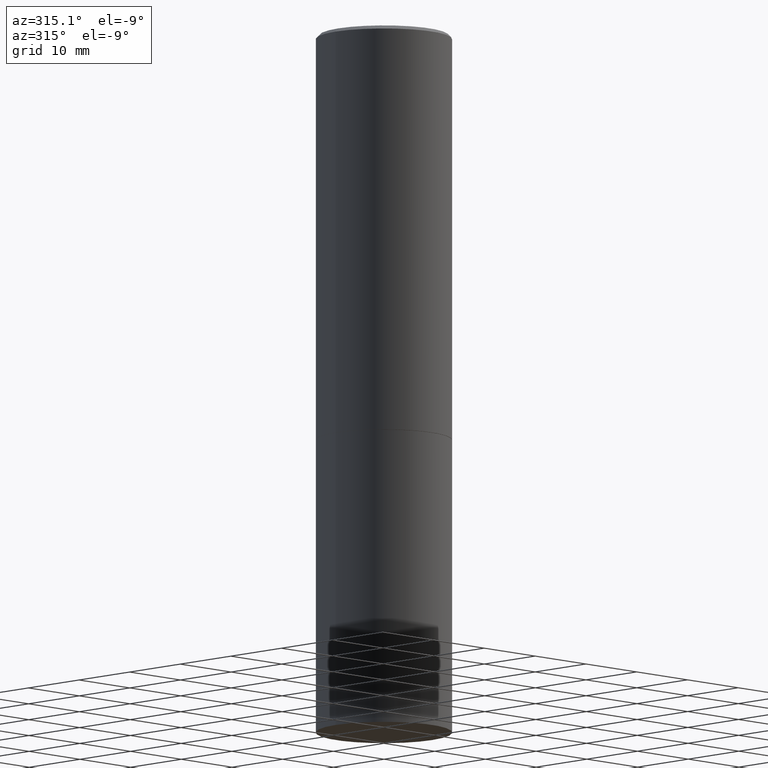
[diagram: clean part render]
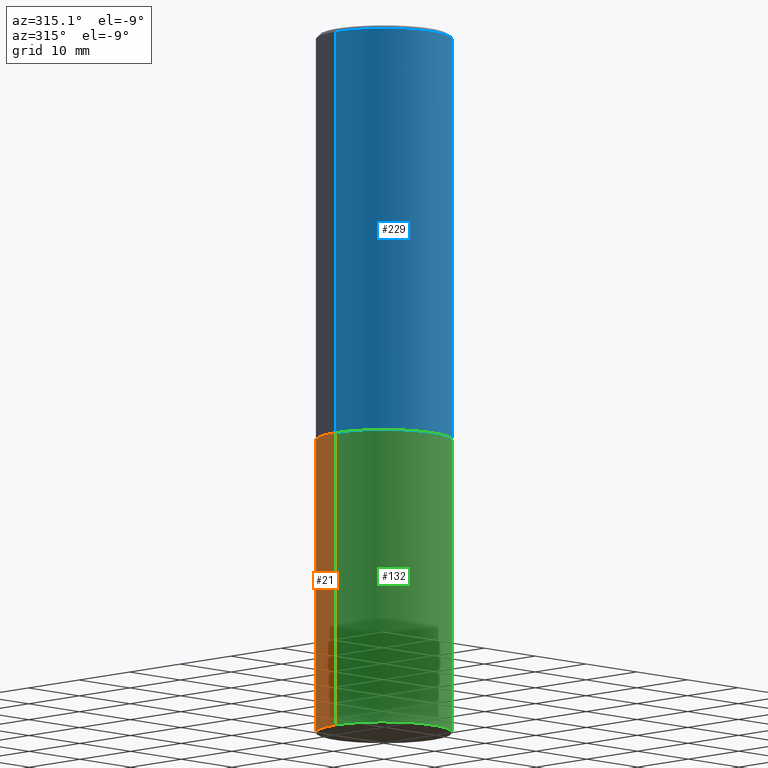
[diagram: same view with three faces highlighted in distinct colors, each labeled with its STEP entity id]
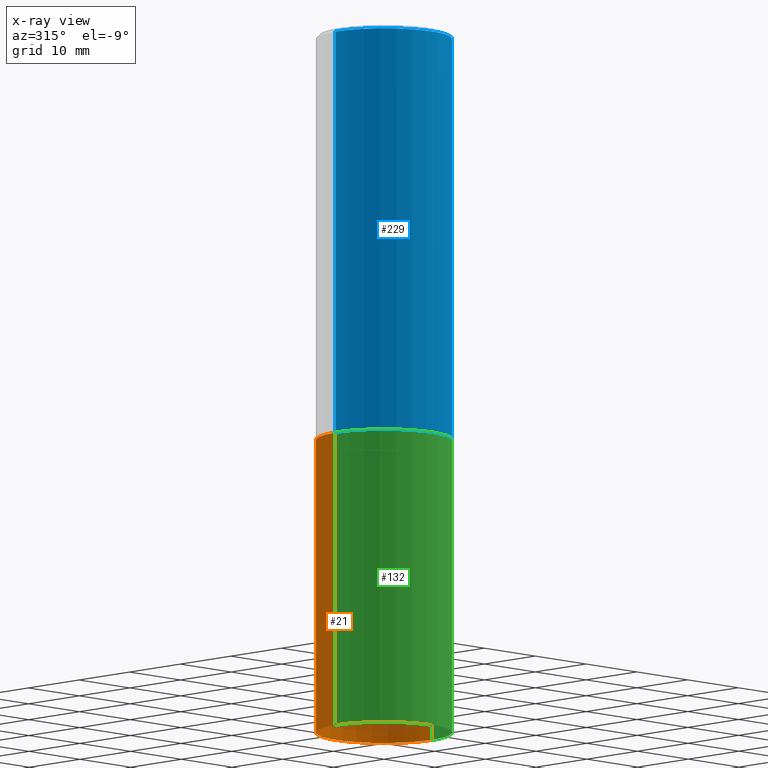
[diagram: x-ray of the same camera — body ghosted, the three highlighted faces saturated]
A machine part, auxiliary view with three faces highlighted in distinct colors.
The next image is the same camera in x-ray (body ghosted, the three faces saturated) — at least one of them is partly hidden behind the body in this view.
Their STEP definitions:

[orange] entity #21 — the highlighted cylindrical surface (partial cylindrical patch) has radius 9.525 mm, axis along (-0, 0, 1).
#8 = VERTEX_POINT ( 'NONE', #70 ) ;
#21 = ADVANCED_FACE ( 'NONE', ( #74 ), #46, .T. ) ;
#25 = AXIS2_PLACEMENT_3D ( 'NONE', #64, #227, #197 ) ;
#29 = CARTESIAN_POINT ( 'NONE',  ( 5.502304813916557343E-29, -7.855833012397078448E-15, -2.250000000000000000 ) ) ;
#38 = DIRECTION ( 'NONE',  ( -2.445468806185136597E-29, 3.491481338843145583E-15, 1.000000000000000000 ) ) ;
#41 = CARTESIAN_POINT ( 'NONE',  ( -0.3750000000000000555, -8.028126341106757280E-15, -2.250000000000000000 ) ) ;
#46 = CYLINDRICAL_SURFACE ( 'NONE', #322, 0.3750000000000000555 ) ;
#50 = EDGE_CURVE ( 'NONE', #242, #8, #96, .T. ) ;
#58 = CARTESIAN_POINT ( 'NONE',  ( 0.3750000000000000555, -1.614810119214954068E-14, -3.875000000000000000 ) ) ;
#62 = AXIS2_PLACEMENT_3D ( 'NONE', #29, #169, #260 ) ;
#64 = CARTESIAN_POINT ( 'NONE',  ( 9.476191623967404313E-29, -1.352949018801718908E-14, -3.875000000000000000 ) ) ;
#70 = CARTESIAN_POINT ( 'NONE',  ( 0.3750000000000000555, -1.047444401652942689E-14, -2.250000000000000000 ) ) ;
#74 = FACE_OUTER_BOUND ( 'NONE', #354, .T. ) ;
#79 = VECTOR ( 'NONE', #193, 39.37007874015748143 ) ;
#84 = EDGE_CURVE ( 'NONE', #209, #315, #168, .T. ) ;
#96 = LINE ( 'NONE', #203, #185 ) ;
#123 = CARTESIAN_POINT ( 'NONE',  ( 0.000000000000000000, 0.000000000000000000, 0.000000000000000000 ) ) ;
#133 = CARTESIAN_POINT ( 'NONE',  ( -0.3750000000000000555, -8.028126341106757280E-15, -3.875000000000000000 ) ) ;
#165 = CIRCLE ( 'NONE', #62, 0.3750000000000000555 ) ;
#168 = LINE ( 'NONE', #303, #79 ) ;
#169 = DIRECTION ( 'NONE',  ( -2.445468806185136597E-29, 3.491481338843145583E-15, 1.000000000000000000 ) ) ;
#180 = DIRECTION ( 'NONE',  ( -2.445468806185136877E-29, 3.491481338843145188E-15, 1.000000000000000000 ) ) ;
#184 = ORIENTED_EDGE ( 'NONE', *, *, #247, .F. ) ;
#185 = VECTOR ( 'NONE', #180, 39.37007874015748143 ) ;
#193 = DIRECTION ( 'NONE',  ( -2.445468806185136877E-29, 3.491481338843145188E-15, 1.000000000000000000 ) ) ;
#197 = DIRECTION ( 'NONE',  ( 1.000000000000000000, -6.982962677686266711E-15, 0.000000000000000000 ) ) ;
#203 = CARTESIAN_POINT ( 'NONE',  ( 0.3750000000000000555, -2.618611004132350016E-15, 1.828566290923476203E-29 ) ) ;
#209 = VERTEX_POINT ( 'NONE', #133 ) ;
#227 = DIRECTION ( 'NONE',  ( -2.445468806185136597E-29, 3.491481338843145583E-15, 1.000000000000000000 ) ) ;
#240 = DIRECTION ( 'NONE',  ( 1.000000000000000000, -6.982962677686265922E-15, 4.876176775795935793E-29 ) ) ;
#242 = VERTEX_POINT ( 'NONE', #58 ) ;
#247 = EDGE_CURVE ( 'NONE', #8, #315, #165, .T. ) ;
#260 = DIRECTION ( 'NONE',  ( 1.000000000000000000, -6.982962677686264344E-15, 0.000000000000000000 ) ) ;
#262 = EDGE_CURVE ( 'NONE', #242, #209, #338, .T. ) ;
#268 = ORIENTED_EDGE ( 'NONE', *, *, #50, .F. ) ;
#301 = ORIENTED_EDGE ( 'NONE', *, *, #262, .T. ) ;
#303 = CARTESIAN_POINT ( 'NONE',  ( -0.3750000000000000555, 2.664535259100376091E-15, -1.844600658845589598E-29 ) ) ;
#315 = VERTEX_POINT ( 'NONE', #41 ) ;
#322 = AXIS2_PLACEMENT_3D ( 'NONE', #123, #38, #240 ) ;
#338 = CIRCLE ( 'NONE', #25, 0.3750000000000000555 ) ;
#354 = EDGE_LOOP ( 'NONE', ( #301, #358, #184, #268 ) ) ;
#358 = ORIENTED_EDGE ( 'NONE', *, *, #84, .T. ) ;

[blue] entity #229 — the highlighted cylindrical surface (partial cylindrical patch) has radius 9.525 mm, axis along (-0, 0, 1).
#6 = VECTOR ( 'NONE', #130, 39.37007874015748143 ) ;
#16 = EDGE_CURVE ( 'NONE', #317, #186, #321, .T. ) ;
#19 = CARTESIAN_POINT ( 'NONE',  ( 0.000000000000000000, 0.000000000000000000, 0.000000000000000000 ) ) ;
#26 = DIRECTION ( 'NONE',  ( -2.445468806185136877E-29, 3.491481338843145188E-15, 1.000000000000000000 ) ) ;
#27 = CARTESIAN_POINT ( 'NONE',  ( -0.3749999999999997780, 2.548781377355484746E-15, -0.02000000000000008715 ) ) ;
#30 = DIRECTION ( 'NONE',  ( -2.445468806185136597E-29, 3.491481338843145583E-15, 1.000000000000000000 ) ) ;
#61 = CARTESIAN_POINT ( 'NONE',  ( 5.499859345110371740E-29, -7.852341531058233864E-15, -2.249000000000000110 ) ) ;
#77 = CARTESIAN_POINT ( 'NONE',  ( 0.3750000000000000555, -1.047095253519058546E-14, -2.249000000000000110 ) ) ;
#90 = AXIS2_PLACEMENT_3D ( 'NONE', #158, #135, #234 ) ;
#92 = CIRCLE ( 'NONE', #230, 0.3750000000000000555 ) ;
#117 = CYLINDRICAL_SURFACE ( 'NONE', #255, 0.3749999999999998890 ) ;
#120 = EDGE_LOOP ( 'NONE', ( #196, #178, #208, #154 ) ) ;
#130 = DIRECTION ( 'NONE',  ( -2.445468806185136877E-29, 3.491481338843145188E-15, 1.000000000000000000 ) ) ;
#135 = DIRECTION ( 'NONE',  ( -2.445468806185136597E-29, 3.491481338843145583E-15, 1.000000000000000000 ) ) ;
#141 = DIRECTION ( 'NONE',  ( -2.445468806185136597E-29, 3.491481338843145583E-15, 1.000000000000000000 ) ) ;
#148 = CARTESIAN_POINT ( 'NONE',  ( -0.3749999999999998890, 2.664535259100374908E-15, -1.844600658845589038E-29 ) ) ;
#151 = EDGE_CURVE ( 'NONE', #156, #233, #275, .T. ) ;
#154 = ORIENTED_EDGE ( 'NONE', *, *, #330, .F. ) ;
#156 = VERTEX_POINT ( 'NONE', #77 ) ;
#158 = CARTESIAN_POINT ( 'NONE',  ( 4.890937612370294178E-31, -6.982962677686321191E-17, -0.02000000000000008715 ) ) ;
#160 = CARTESIAN_POINT ( 'NONE',  ( 0.3749999999999998890, -2.618611004132349228E-15, 1.828566290923475362E-29 ) ) ;
#178 = ORIENTED_EDGE ( 'NONE', *, *, #266, .T. ) ;
#186 = VERTEX_POINT ( 'NONE', #27 ) ;
#196 = ORIENTED_EDGE ( 'NONE', *, *, #16, .F. ) ;
#198 = VECTOR ( 'NONE', #26, 39.37007874015748143 ) ;
#208 = ORIENTED_EDGE ( 'NONE', *, *, #151, .T. ) ;
#221 = DIRECTION ( 'NONE',  ( 1.000000000000000000, -6.982962677686266711E-15, 4.876176775795935793E-29 ) ) ;
#229 = ADVANCED_FACE ( 'NONE', ( #278 ), #117, .T. ) ;
#230 = AXIS2_PLACEMENT_3D ( 'NONE', #61, #30, #261 ) ;
#233 = VERTEX_POINT ( 'NONE', #327 ) ;
#234 = DIRECTION ( 'NONE',  ( 1.000000000000000000, -6.982962677686265922E-15, 0.000000000000000000 ) ) ;
#241 = CIRCLE ( 'NONE', #90, 0.3749999999999997780 ) ;
#244 = CARTESIAN_POINT ( 'NONE',  ( -0.3750000000000000555, -1.296550319817170517E-15, -2.249000000000000110 ) ) ;
#255 = AXIS2_PLACEMENT_3D ( 'NONE', #19, #141, #221 ) ;
#261 = DIRECTION ( 'NONE',  ( 1.000000000000000000, -6.982962677686266711E-15, 0.000000000000000000 ) ) ;
#266 = EDGE_CURVE ( 'NONE', #317, #156, #92, .T. ) ;
#275 = LINE ( 'NONE', #160, #198 ) ;
#278 = FACE_OUTER_BOUND ( 'NONE', #120, .T. ) ;
#317 = VERTEX_POINT ( 'NONE', #244 ) ;
#321 = LINE ( 'NONE', #148, #6 ) ;
#327 = CARTESIAN_POINT ( 'NONE',  ( 0.3749999999999997780, -2.642516375941186056E-15, -0.02000000000000008715 ) ) ;
#330 = EDGE_CURVE ( 'NONE', #186, #233, #241, .T. ) ;

[green] entity #132 — the highlighted cylindrical surface (partial cylindrical patch) has radius 9.525 mm, axis along (-0, 0, 1).
#8 = VERTEX_POINT ( 'NONE', #70 ) ;
#40 = ORIENTED_EDGE ( 'NONE', *, *, #50, .T. ) ;
#41 = CARTESIAN_POINT ( 'NONE',  ( -0.3750000000000000555, -8.028126341106757280E-15, -2.250000000000000000 ) ) ;
#48 = DIRECTION ( 'NONE',  ( -2.445468806185136597E-29, 3.491481338843145583E-15, 1.000000000000000000 ) ) ;
#49 = ORIENTED_EDGE ( 'NONE', *, *, #84, .F. ) ;
#50 = EDGE_CURVE ( 'NONE', #242, #8, #96, .T. ) ;
#58 = CARTESIAN_POINT ( 'NONE',  ( 0.3750000000000000555, -1.614810119214954068E-14, -3.875000000000000000 ) ) ;
#70 = CARTESIAN_POINT ( 'NONE',  ( 0.3750000000000000555, -1.047444401652942689E-14, -2.250000000000000000 ) ) ;
#71 = CARTESIAN_POINT ( 'NONE',  ( 9.476191623967404313E-29, -1.352949018801718908E-14, -3.875000000000000000 ) ) ;
#76 = DIRECTION ( 'NONE',  ( 1.000000000000000000, -6.982962677686265922E-15, 4.876176775795935793E-29 ) ) ;
#79 = VECTOR ( 'NONE', #193, 39.37007874015748143 ) ;
#81 = FACE_OUTER_BOUND ( 'NONE', #145, .T. ) ;
#84 = EDGE_CURVE ( 'NONE', #209, #315, #168, .T. ) ;
#96 = LINE ( 'NONE', #203, #185 ) ;
#119 = ORIENTED_EDGE ( 'NONE', *, *, #314, .T. ) ;
#132 = ADVANCED_FACE ( 'NONE', ( #81 ), #164, .T. ) ;
#133 = CARTESIAN_POINT ( 'NONE',  ( -0.3750000000000000555, -8.028126341106757280E-15, -3.875000000000000000 ) ) ;
#138 = CIRCLE ( 'NONE', #146, 0.3750000000000000555 ) ;
#145 = EDGE_LOOP ( 'NONE', ( #49, #119, #40, #246 ) ) ;
#146 = AXIS2_PLACEMENT_3D ( 'NONE', #71, #48, #181 ) ;
#164 = CYLINDRICAL_SURFACE ( 'NONE', #211, 0.3750000000000000555 ) ;
#168 = LINE ( 'NONE', #303, #79 ) ;
#180 = DIRECTION ( 'NONE',  ( -2.445468806185136877E-29, 3.491481338843145188E-15, 1.000000000000000000 ) ) ;
#181 = DIRECTION ( 'NONE',  ( 1.000000000000000000, -6.982962677686266711E-15, 0.000000000000000000 ) ) ;
#183 = CIRCLE ( 'NONE', #243, 0.3750000000000000555 ) ;
#185 = VECTOR ( 'NONE', #180, 39.37007874015748143 ) ;
#191 = DIRECTION ( 'NONE',  ( 1.000000000000000000, -6.982962677686264344E-15, 0.000000000000000000 ) ) ;
#193 = DIRECTION ( 'NONE',  ( -2.445468806185136877E-29, 3.491481338843145188E-15, 1.000000000000000000 ) ) ;
#203 = CARTESIAN_POINT ( 'NONE',  ( 0.3750000000000000555, -2.618611004132350016E-15, 1.828566290923476203E-29 ) ) ;
#209 = VERTEX_POINT ( 'NONE', #133 ) ;
#211 = AXIS2_PLACEMENT_3D ( 'NONE', #216, #280, #76 ) ;
#216 = CARTESIAN_POINT ( 'NONE',  ( 0.000000000000000000, 0.000000000000000000, 0.000000000000000000 ) ) ;
#237 = EDGE_CURVE ( 'NONE', #315, #8, #183, .T. ) ;
#242 = VERTEX_POINT ( 'NONE', #58 ) ;
#243 = AXIS2_PLACEMENT_3D ( 'NONE', #258, #366, #191 ) ;
#246 = ORIENTED_EDGE ( 'NONE', *, *, #237, .F. ) ;
#258 = CARTESIAN_POINT ( 'NONE',  ( 5.502304813916557343E-29, -7.855833012397078448E-15, -2.250000000000000000 ) ) ;
#280 = DIRECTION ( 'NONE',  ( -2.445468806185136597E-29, 3.491481338843145583E-15, 1.000000000000000000 ) ) ;
#303 = CARTESIAN_POINT ( 'NONE',  ( -0.3750000000000000555, 2.664535259100376091E-15, -1.844600658845589598E-29 ) ) ;
#314 = EDGE_CURVE ( 'NONE', #209, #242, #138, .T. ) ;
#315 = VERTEX_POINT ( 'NONE', #41 ) ;
#366 = DIRECTION ( 'NONE',  ( -2.445468806185136597E-29, 3.491481338843145583E-15, 1.000000000000000000 ) ) ;